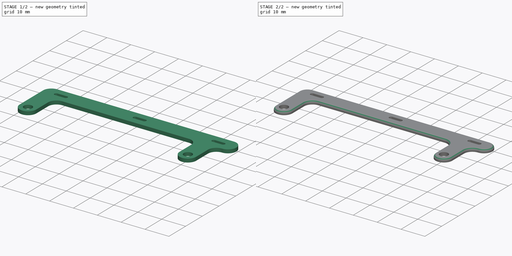
[diagram: build sequence overview — one tinted view per stage of 2, left to right]
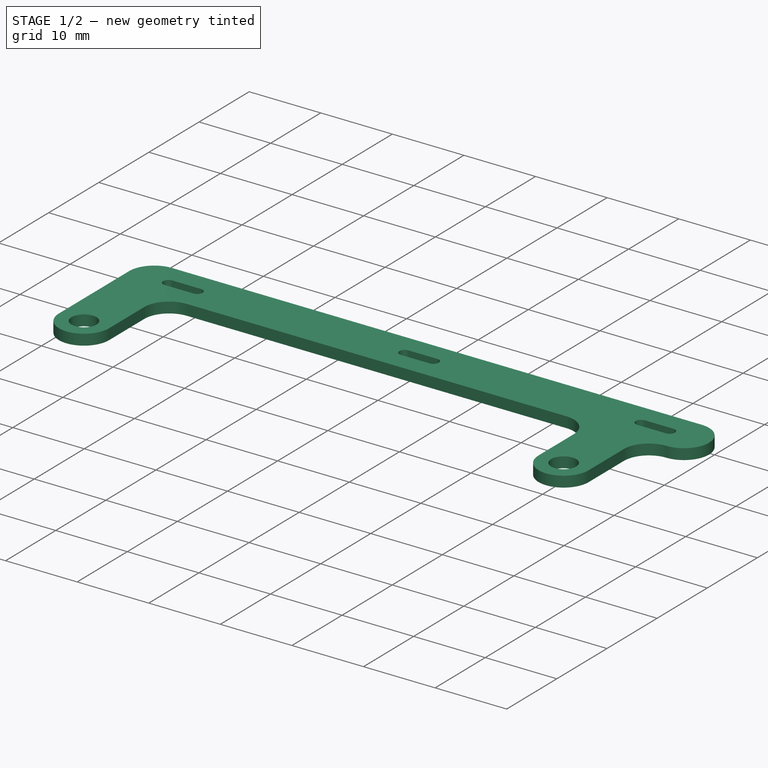
[diagram: stage 1 of 2 — iso view after this stage's code; geometry added in this stage tinted green]
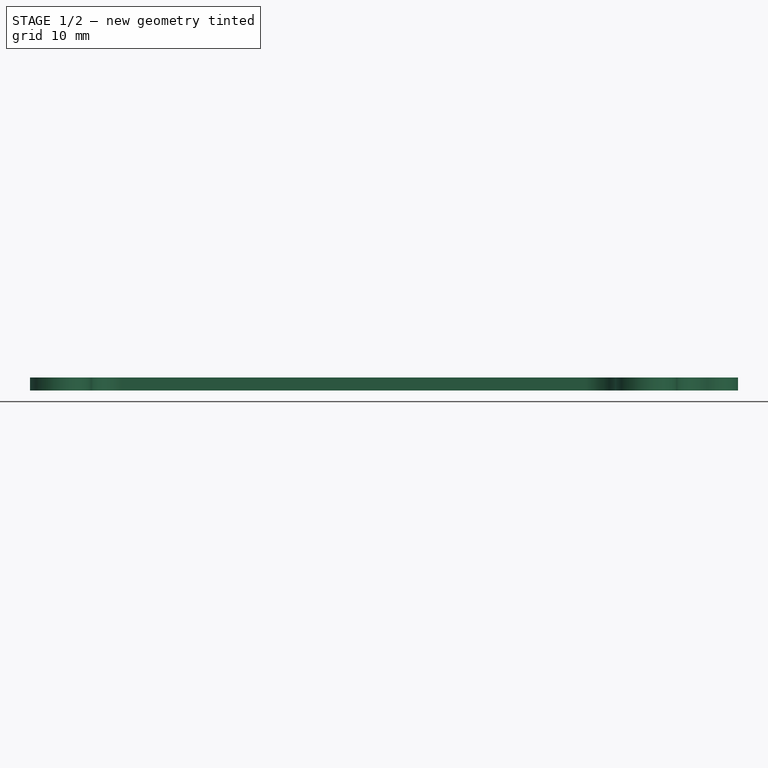
[diagram: stage 1 of 2 — front view after this stage's code; geometry added in this stage tinted green]
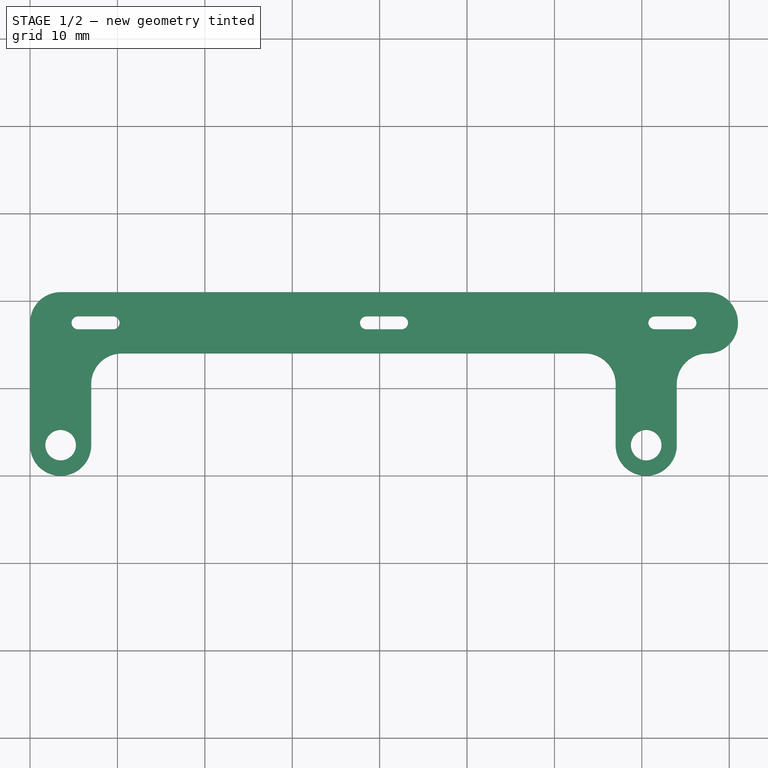
[diagram: stage 1 of 2 — top view after this stage's code; geometry added in this stage tinted green]
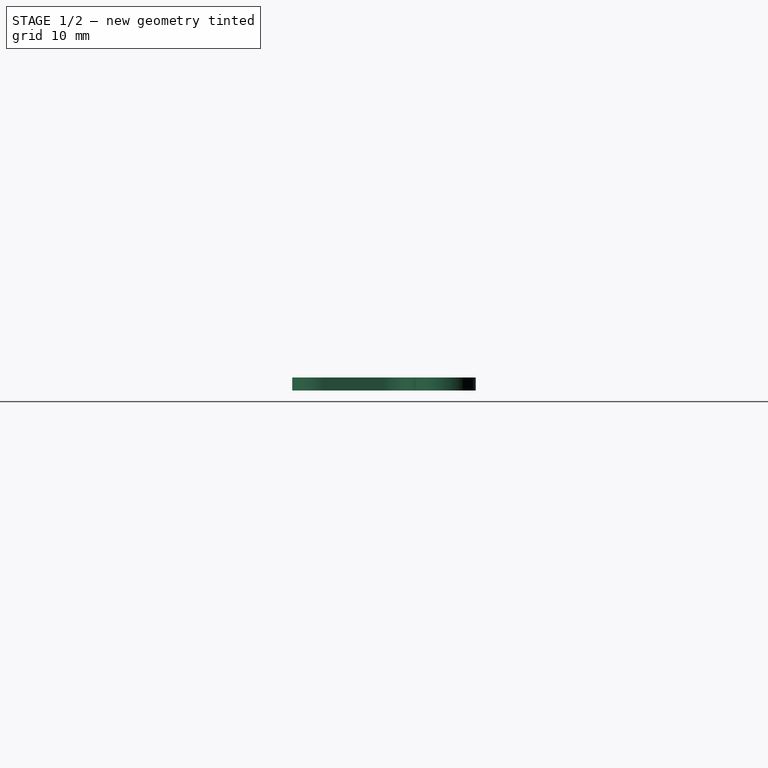
[diagram: stage 1 of 2 — right view after this stage's code; geometry added in this stage tinted green]
FCSTD DOCUMENT  (FreeCAD 0.21R33771 (Git))
Label: U1MB 600XL back shield bracket
License: All rights reserved
LicenseURL: http://en.wikipedia.org/wiki/All_rights_reserved
objects: Sketcher::SketchObject×1, PartDesign::Pad×1, PartDesign::Fillet×1, PartDesign::Body×1
note: 6 computed .brp shape members not serialized (recipe doc carries the construction recipe); baked Part::Feature solids carry a one-line shape summary decoded from their .brp

FEATURE [Sketcher::SketchObject] Sketch
  FullyConstrained = true
  MapMode = 5
  Support = -> [XY_Plane]
  sketch-geometry (29):
    g0: ArcOfCircle CenterX=3.5 CenterY=3.5 CenterZ=0 NormalX=0 NormalY=0 NormalZ=1 AngleXU=0 Radius=3.5 StartAngle=3.14159 EndAngle=6.28319
    g1: LineSegment StartX=0 StartY=3.5 StartZ=0 EndX=0 EndY=17.5 EndZ=0
    g2: ArcOfCircle CenterX=3.5 CenterY=17.5 CenterZ=0 NormalX=0 NormalY=0 NormalZ=1 AngleXU=0 Radius=3.5 StartAngle=1.5708 EndAngle=3.14159
    g3: LineSegment StartX=3.5 StartY=21 StartZ=0 EndX=77.5 EndY=21 EndZ=0
    g4: ArcOfCircle CenterX=70.5 CenterY=3.5 CenterZ=0 NormalX=0 NormalY=0 NormalZ=1 AngleXU=0 Radius=3.5 StartAngle=3.14159 EndAngle=6.28319
    g5: GeomPoint X=0 Y=0 Z=0
    g6: LineSegment StartX=74 StartY=3.5 StartZ=0 EndX=74 EndY=10.5 EndZ=0
    g7: LineSegment StartX=67 StartY=3.5 StartZ=0 EndX=67 EndY=10.5 EndZ=0
    g8: LineSegment StartX=7 StartY=3.5 StartZ=0 EndX=7 EndY=10.5 EndZ=0
    g9: ArcOfCircle CenterX=10.5 CenterY=10.5 CenterZ=0 NormalX=0 NormalY=0 NormalZ=1 AngleXU=0 Radius=3.5 StartAngle=1.5708 EndAngle=3.14159
    g10: ArcOfCircle CenterX=63.5 CenterY=10.5 CenterZ=0 NormalX=0 NormalY=0 NormalZ=1 AngleXU=0 Radius=3.5 StartAngle=0 EndAngle=1.5708
    g11: ArcOfCircle CenterX=77.5 CenterY=10.5 CenterZ=0 NormalX=0 NormalY=0 NormalZ=1 AngleXU=0 Radius=3.5 StartAngle=1.5708 EndAngle=3.14159
    g12: ArcOfCircle CenterX=77.5 CenterY=17.5 CenterZ=0 NormalX=0 NormalY=0 NormalZ=1 AngleXU=0 Radius=3.5 StartAngle=4.71239 EndAngle=7.85398
    g13: LineSegment StartX=10.5 StartY=14 StartZ=0 EndX=63.5 EndY=14 EndZ=0
    g14: Circle CenterX=3.5 CenterY=3.5 CenterZ=0 NormalX=0 NormalY=0 NormalZ=1 AngleXU=0 Radius=1.75
    g15: Circle CenterX=70.5 CenterY=3.5 CenterZ=0 NormalX=0 NormalY=0 NormalZ=1 AngleXU=0 Radius=1.75
    g16: ArcOfCircle CenterX=5.5 CenterY=17.5 CenterZ=0 NormalX=0 NormalY=0 NormalZ=1 AngleXU=0 Radius=0.75 StartAngle=1.5708 EndAngle=4.71239
    g17: ArcOfCircle CenterX=9.5 CenterY=17.5 CenterZ=0 NormalX=0 NormalY=0 NormalZ=1 AngleXU=0 Radius=0.75 StartAngle=4.71239 EndAngle=7.85398
    g18: LineSegment StartX=5.5 StartY=16.75 StartZ=0 EndX=9.5 EndY=16.75 EndZ=0
    g19: LineSegment StartX=9.5 StartY=18.25 StartZ=0 EndX=5.5 EndY=18.25 EndZ=0
    g20: GeomPoint X=81 Y=17.5 Z=0
    g21: ArcOfCircle CenterX=38.5 CenterY=17.5 CenterZ=0 NormalX=0 NormalY=0 NormalZ=1 AngleXU=0 Radius=0.75 StartAngle=1.5708 EndAngle=4.71239
    g22: ArcOfCircle CenterX=42.5 CenterY=17.5 CenterZ=0 NormalX=0 NormalY=0 NormalZ=1 AngleXU=0 Radius=0.75 StartAngle=4.71239 EndAngle=7.85398
    g23: LineSegment StartX=38.5 StartY=16.75 StartZ=0 EndX=42.5 EndY=16.75 EndZ=0
    g24: LineSegment StartX=42.5 StartY=18.25 StartZ=0 EndX=38.5 EndY=18.25 EndZ=0
    g25: ArcOfCircle CenterX=71.5 CenterY=17.5 CenterZ=0 NormalX=0 NormalY=0 NormalZ=1 AngleXU=0 Radius=0.75 StartAngle=1.5708 EndAngle=4.71239
    g26: ArcOfCircle CenterX=75.5 CenterY=17.5 CenterZ=0 NormalX=0 NormalY=0 NormalZ=1 AngleXU=0 Radius=0.75 StartAngle=4.71239 EndAngle=7.85398
    g27: LineSegment StartX=71.5 StartY=16.75 StartZ=0 EndX=75.5 EndY=16.75 EndZ=0
    g28: LineSegment StartX=75.5 StartY=18.25 StartZ=0 EndX=71.5 EndY=18.25 EndZ=0
  constraints (77):
    c: Tangent(g0,g1) = 1.5708
    c: Tangent(g1,g2) = 1.5708
    c: Tangent(g2,g3) = 1.5708
    c: Horizontal(g3)
    c: Vertical(g1)
    c: Equal(g0,g2)
    c: PointOnObject(g5,g1)
    c: Coincident(g5,g-1)
    c: Diameter(g2) = 7
    c: Horizontal(g0,g0)
    c: Horizontal(g0,g4)
    c: Horizontal(g4,g4)
    c: Tangent(g0,g-1)
    c: Horizontal(g4,g4)
    c: Coincident(g6,g4)
    c: Vertical(g6)
    c: Coincident(g7,g4)
    c: Vertical(g7)
    c: Coincident(g8,g0)
    c: Vertical(g8)
    c: Horizontal(g8,g7)
    c: Horizontal(g7,g6)
    c: Coincident(g9,g8)
    c: Coincident(g10,g7)
    c: Coincident(g11,g6)
    c: Horizontal(g8,g9)
    c: Horizontal(g10,g7)
    c: Horizontal(g6,g11)
    c: Vertical(g9,g9)
    c: Vertical(g10,g10)
    c: Vertical(g11,g11)
    c: Vertical(g12,g12)
    c: Equal(g2, g9-g12) x4
    c: Coincident(g13,g9)
    c: Coincident(g13,g10)
    c: DistanceX(g0,g4) = 67
    c: Coincident(g14,g0)
    c: Coincident(g15,g4)
    c: Equal(g14,g15)
    c: Diameter(g14) = 3.5
    c: Tangent(g16,g18) = -1.5708
    c: Tangent(g18,g17) = -1.5708
    c: Tangent(g17,g19) = -1.5708
    c: Tangent(g19,g16) = -1.5708
    c: Equal(g16,g17)
    c: Horizontal(g18)
    c: Diameter(g16) = 1.5
    c: Horizontal(g2,g16)
    c: DistanceX(g16,g17) = 4
    c: DistanceX(g0,g16) = 2
    c: Coincident(g12,g3)
    c: Vertical(g3,g12)
    c: PointOnObject(g20,g12)
    c: Horizontal(g20,g12)
    c: DistanceY(g0,g2) = 14
    c: Tangent(g21,g23) = -1.5708
    c: Tangent(g23,g22) = -1.5708
    c: Tangent(g22,g24) = -1.5708
    c: Tangent(g24,g21) = -1.5708
    c: Equal(g21,g22)
    c: Horizontal(g23)
    c: Tangent(g25,g27) = -1.5708
    c: Tangent(g27,g26) = -1.5708
    c: Tangent(g26,g28) = -1.5708
    c: Tangent(g28,g25) = -1.5708
    c: Equal(g25,g26)
    c: Horizontal(g27)
    c: Equal(g16,g21)
    c: Equal(g19,g24)
    c: Equal(g19,g28)
    c: Equal(g16,g25)
    c: Horizontal(g2,g21)
    c: Horizontal(g2,g25)
    c: DistanceX(g16,g21) = 33
    c: DistanceX(g21,g25) = 33
    c: Equal(g0,g4)
    c: Coincident(g12,g11)
FEATURE [PartDesign::Pad] Pad
  Direction = (0,0,1)
  Length = 1.5
  Length2 = 10
  Profile = -> Sketch
  ReferenceAxis = -> Sketch [N_Axis]
  Type = 0
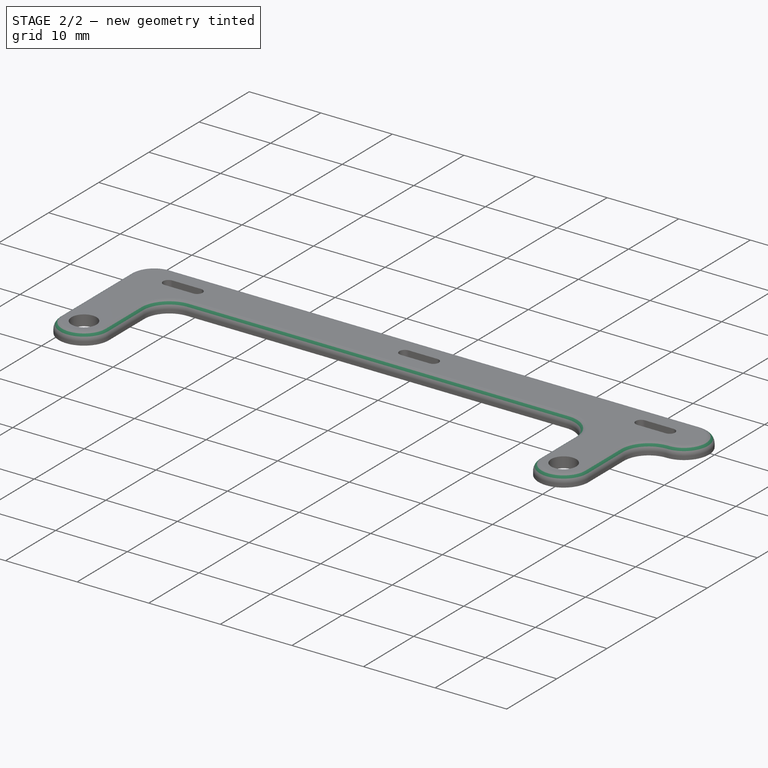
[diagram: stage 2 of 2 — iso view after this stage's code; geometry added in this stage tinted green]
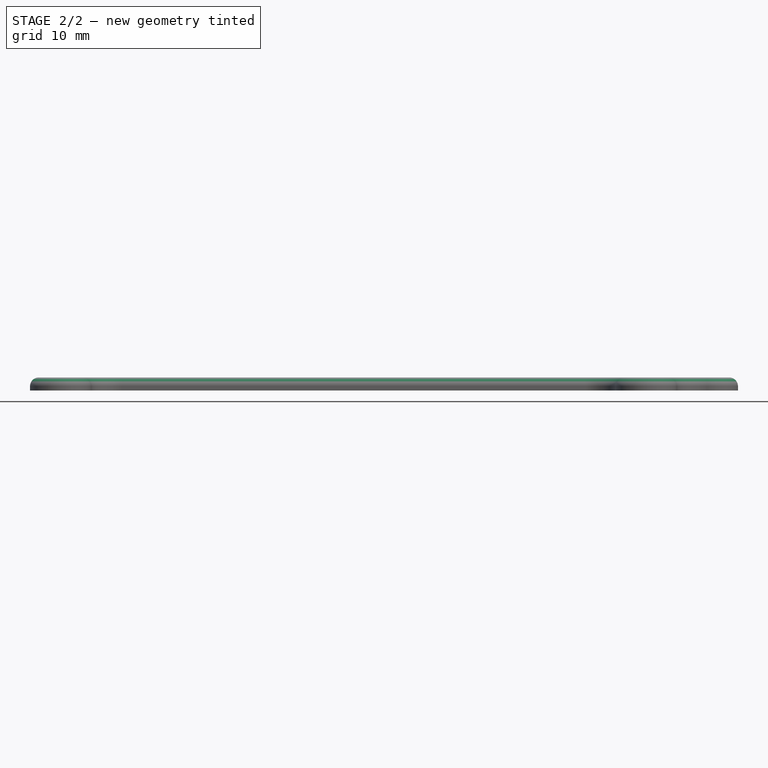
[diagram: stage 2 of 2 — front view after this stage's code; geometry added in this stage tinted green]
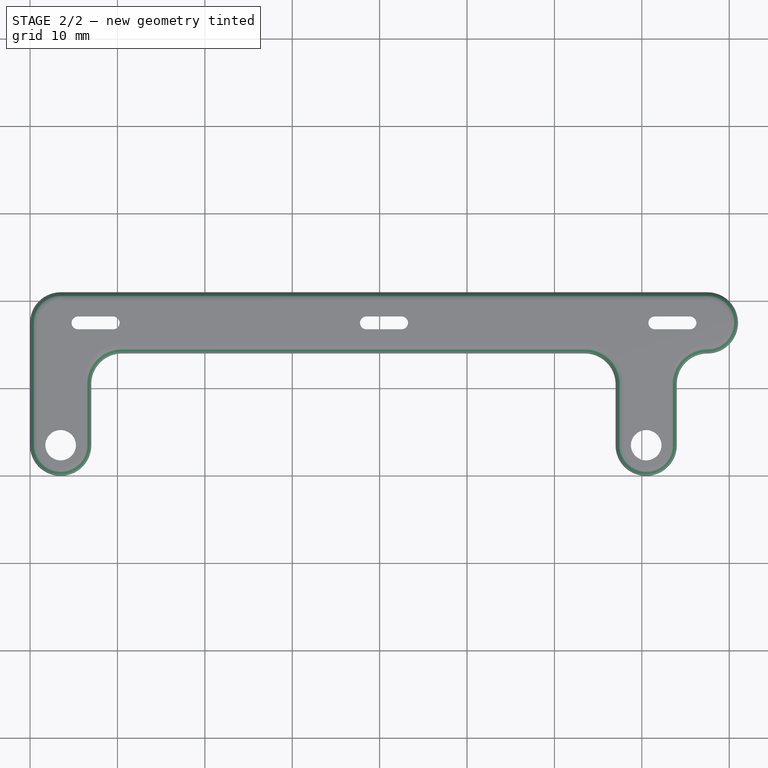
[diagram: stage 2 of 2 — top view after this stage's code; geometry added in this stage tinted green]
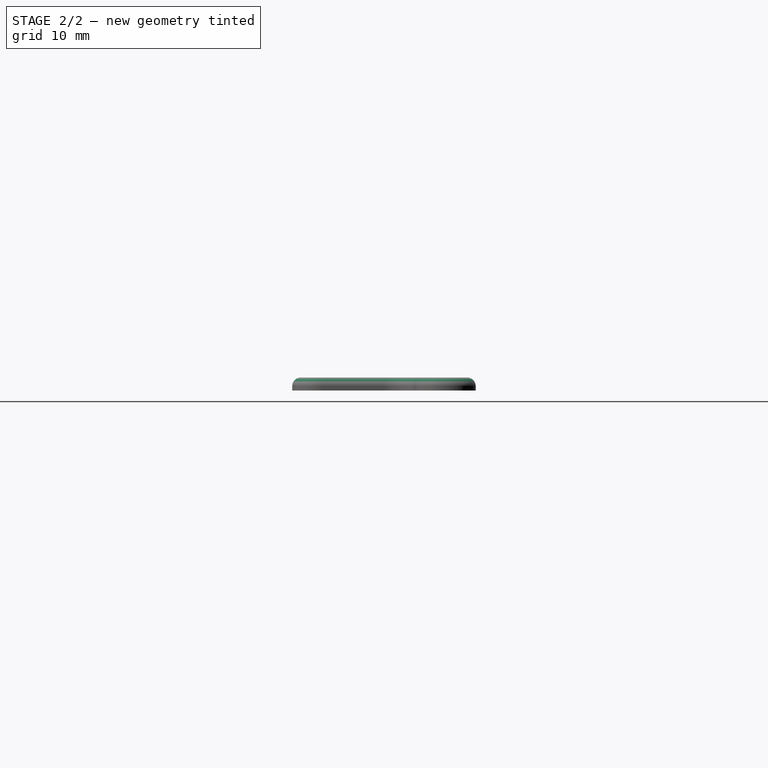
[diagram: stage 2 of 2 — right view after this stage's code; geometry added in this stage tinted green]
FEATURE [PartDesign::Fillet] Fillet
  Base = -> Pad [Edge16]
  BaseFeature = -> Pad
  Radius = 1
  SupportTransform = false
  UseAllEdges = false
FEATURE [PartDesign::Body] Body
  Group = -> [Sketch,Pad,Fillet]
  Origin = -> Origin
  Tip = -> Fillet
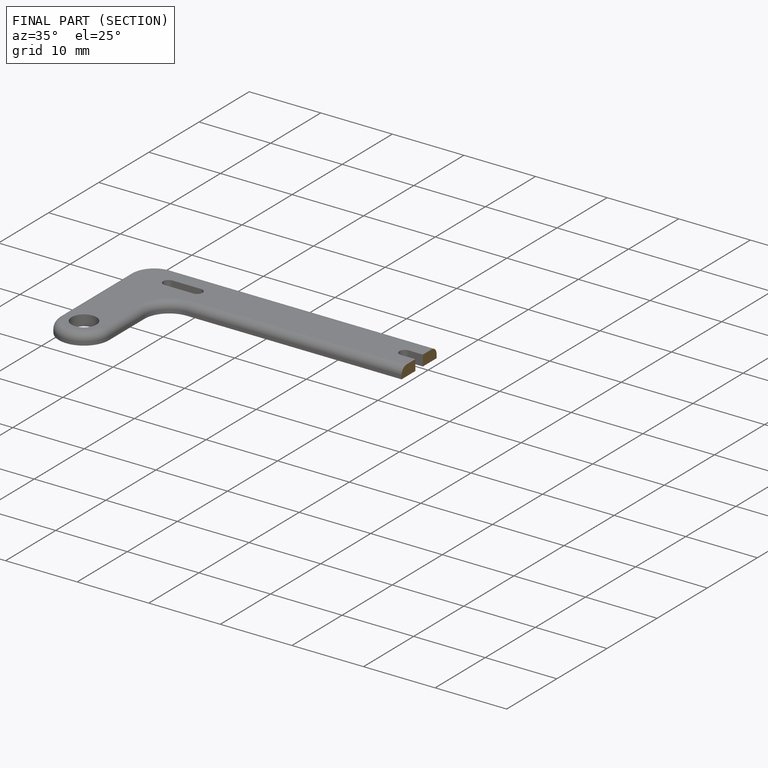
[diagram: finished part — half-section view (interior)]
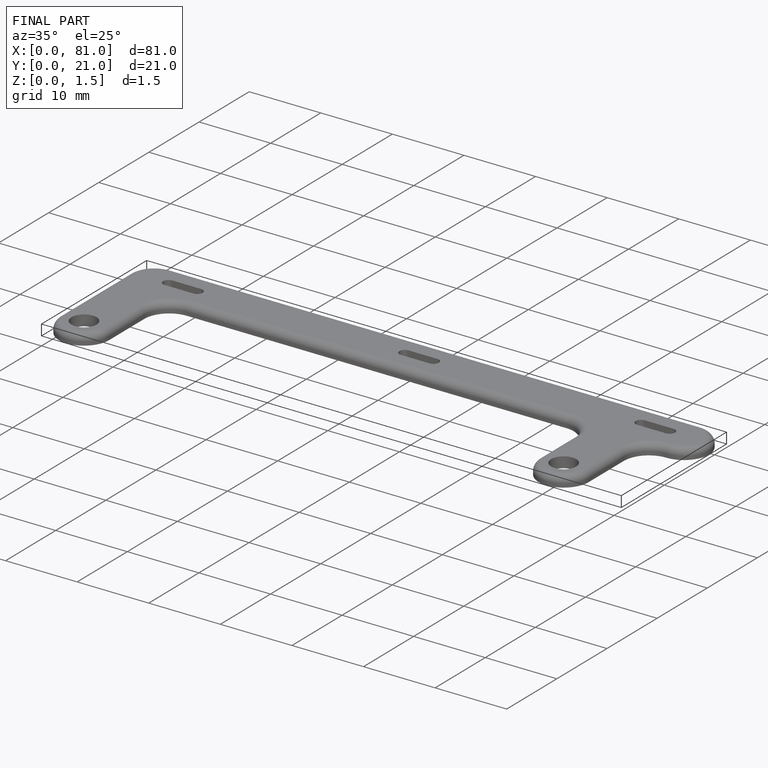
[diagram: finished part — iso view with bounding-box wireframe]
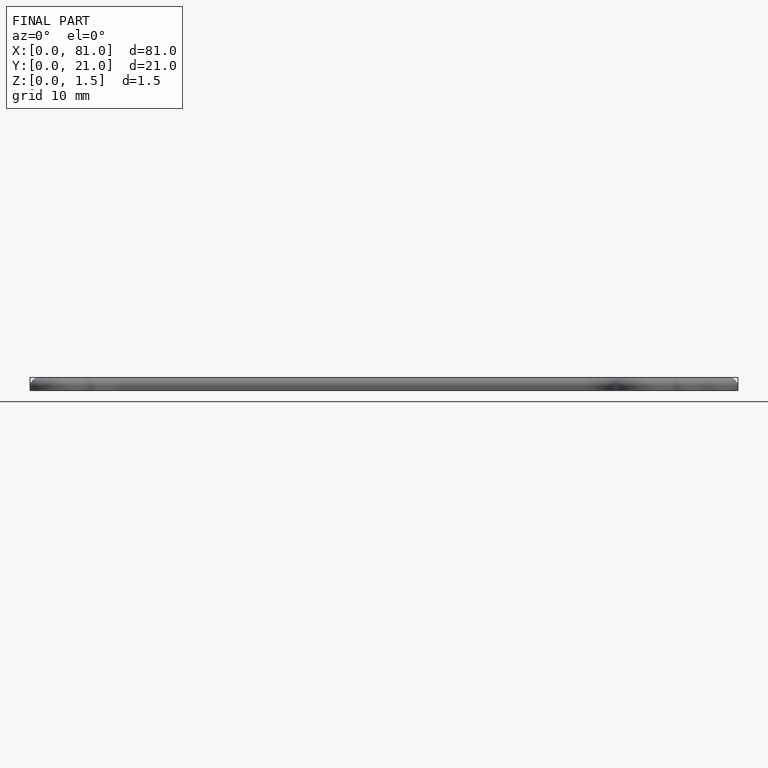
[diagram: finished part — front view with bounding-box wireframe]
